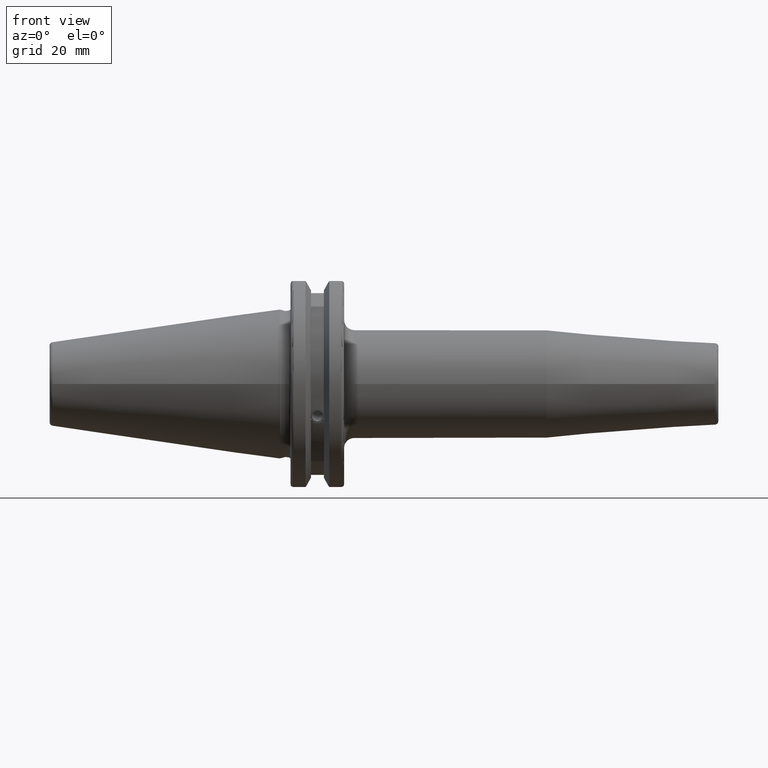
[diagram: clean part render]
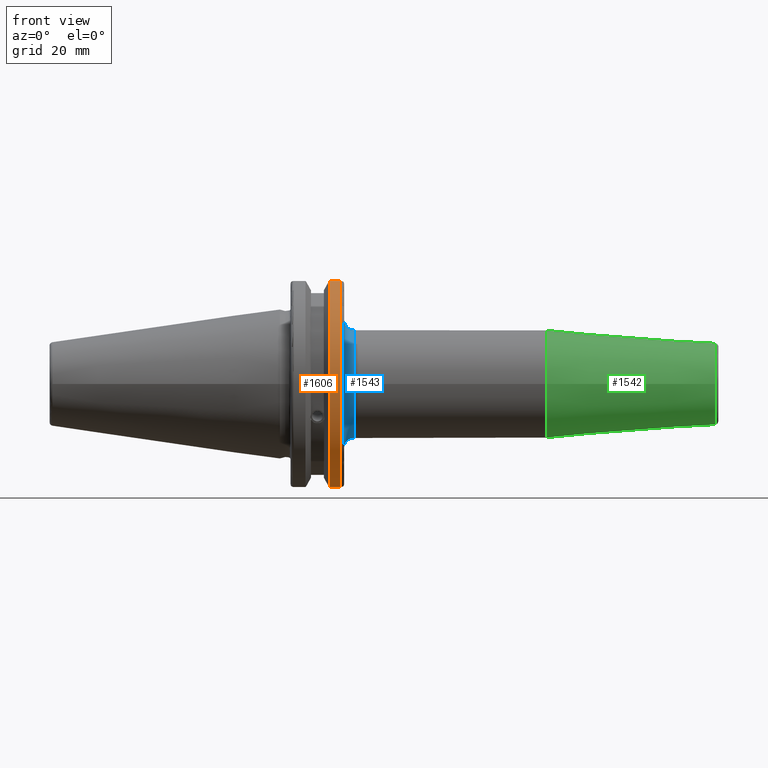
[diagram: same view with three faces highlighted in distinct colors, each labeled with its STEP entity id]
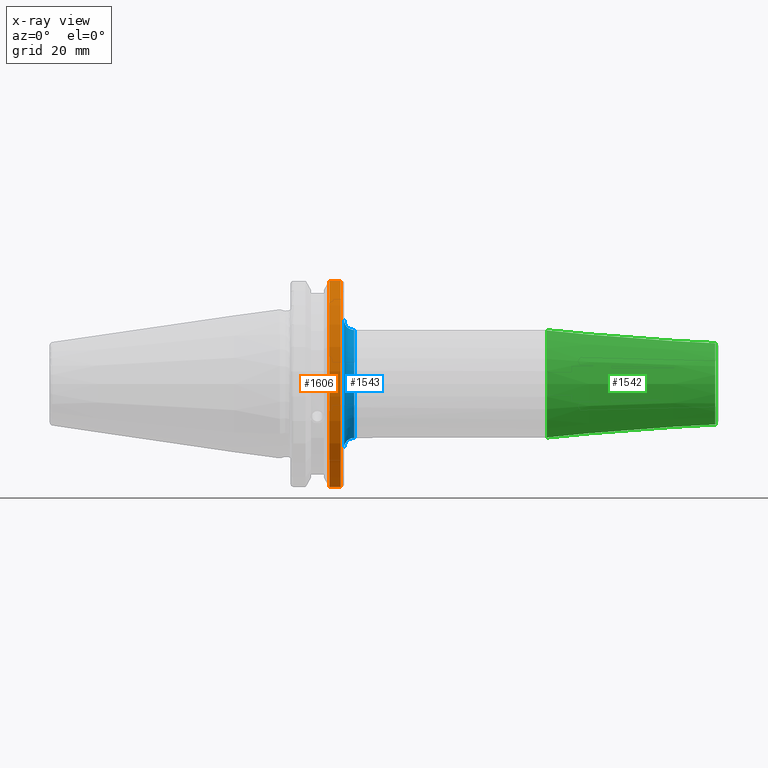
[diagram: x-ray of the same camera — body ghosted, the three highlighted faces saturated]
A machine part, front view with three faces highlighted in distinct colors.
The next image is the same camera in x-ray (body ghosted, the three faces saturated) — at least one of them is partly hidden behind the body in this view.
Their STEP definitions:

[orange] entity #1606 — the highlighted cylindrical surface (partial cylindrical patch) has radius 31.75 mm, axis along (1, 0, 0).
#168=CYLINDRICAL_SURFACE('',#1804,31.75);
#245=FACE_OUTER_BOUND('',#352,.T.);
#352=EDGE_LOOP('',(#1430,#1431,#1432,#1433));
#464=LINE('',#3051,#562);
#465=LINE('',#3053,#563);
#562=VECTOR('',#2235,10.);
#563=VECTOR('',#2238,10.);
#599=CIRCLE('',#1716,31.75);
#625=CIRCLE('',#1776,31.75);
#708=VERTEX_POINT('',#2603);
#709=VERTEX_POINT('',#2607);
#773=VERTEX_POINT('',#2894);
#774=VERTEX_POINT('',#2903);
#886=EDGE_CURVE('',#709,#708,#599,.T.);
#976=EDGE_CURVE('',#773,#774,#625,.T.);
#1022=EDGE_CURVE('',#774,#708,#464,.T.);
#1023=EDGE_CURVE('',#709,#773,#465,.T.);
#1430=ORIENTED_EDGE('',*,*,#976,.F.);
#1431=ORIENTED_EDGE('',*,*,#1023,.F.);
#1432=ORIENTED_EDGE('',*,*,#886,.T.);
#1433=ORIENTED_EDGE('',*,*,#1022,.F.);
#1606=ADVANCED_FACE('',(#245),#168,.T.);
#1716=AXIS2_PLACEMENT_3D('',#2608,#2002,#2003);
#1776=AXIS2_PLACEMENT_3D('',#2904,#2156,#2157);
#1804=AXIS2_PLACEMENT_3D('',#3052,#2236,#2237);
#2002=DIRECTION('center_axis',(1.,0.,0.));
#2003=DIRECTION('ref_axis',(0.,0.,-1.));
#2156=DIRECTION('center_axis',(1.,0.,0.));
#2157=DIRECTION('ref_axis',(0.,-1.,1.60812264967664E-16));
#2235=DIRECTION('',(-1.,0.,0.));
#2236=DIRECTION('center_axis',(1.,0.,0.));
#2237=DIRECTION('ref_axis',(0.,-1.,1.22464679914735E-16));
#2238=DIRECTION('',(1.,0.,0.));
#2603=CARTESIAN_POINT('',(14.6602667690756,-8.67204822802686,-30.5427254764662));
#2607=CARTESIAN_POINT('',(14.6602667690756,-8.67204822802685,30.5427254764662));
#2608=CARTESIAN_POINT('Origin',(14.6602667690756,0.,0.));
#2894=CARTESIAN_POINT('',(18.05,-8.67204822802685,30.5427254764662));
#2903=CARTESIAN_POINT('',(18.05,-8.67204822802686,-30.5427254764662));
#2904=CARTESIAN_POINT('Origin',(18.05,0.,0.));
#3051=CARTESIAN_POINT('',(16.8551333845378,-8.67204822802686,-30.5427254764662));
#3052=CARTESIAN_POINT('Origin',(16.8551333845378,0.,0.));
#3053=CARTESIAN_POINT('',(16.8551333845378,-8.67204822802685,30.5427254764662));

[blue] entity #1543 — the highlighted toroidal blend (fillet) surface has major radius 19 mm and minor (blend) radius 3 mm.
#117=TOROIDAL_SURFACE('',#1667,19.,3.);
#182=FACE_OUTER_BOUND('',#276,.T.);
#276=EDGE_LOOP('',(#1071,#1072,#1073,#1074,#1075));
#579=CIRCLE('',#1668,16.);
#580=CIRCLE('',#1669,3.);
#581=CIRCLE('',#1670,19.);
#582=CIRCLE('',#1671,16.);
#657=VERTEX_POINT('',#2343);
#658=VERTEX_POINT('',#2344);
#659=VERTEX_POINT('',#2346);
#819=EDGE_CURVE('',#657,#658,#579,.T.);
#820=EDGE_CURVE('',#658,#659,#580,.T.);
#821=EDGE_CURVE('',#659,#659,#581,.T.);
#822=EDGE_CURVE('',#658,#657,#582,.T.);
#1071=ORIENTED_EDGE('',*,*,#819,.T.);
#1072=ORIENTED_EDGE('',*,*,#820,.T.);
#1073=ORIENTED_EDGE('',*,*,#821,.T.);
#1074=ORIENTED_EDGE('',*,*,#820,.F.);
#1075=ORIENTED_EDGE('',*,*,#822,.T.);
#1543=ADVANCED_FACE('',(#182),#117,.F.);
#1667=AXIS2_PLACEMENT_3D('',#2342,#1877,#1878);
#1668=AXIS2_PLACEMENT_3D('',#2345,#1879,#1880);
#1669=AXIS2_PLACEMENT_3D('',#2347,#1881,#1882);
#1670=AXIS2_PLACEMENT_3D('',#2348,#1883,#1884);
#1671=AXIS2_PLACEMENT_3D('',#2349,#1885,#1886);
#1877=DIRECTION('center_axis',(-1.,0.,0.));
#1878=DIRECTION('ref_axis',(0.,0.,1.));
#1879=DIRECTION('center_axis',(-1.,0.,0.));
#1880=DIRECTION('ref_axis',(0.,-1.,-1.22464679914735E-16));
#1881=DIRECTION('center_axis',(0.,-1.,1.22464679914735E-16));
#1882=DIRECTION('ref_axis',(0.,-1.22464679914735E-16,-1.));
#1883=DIRECTION('center_axis',(1.,0.,0.));
#1884=DIRECTION('ref_axis',(0.,-1.,-1.22464679914735E-16));
#1885=DIRECTION('center_axis',(-1.,0.,0.));
#1886=DIRECTION('ref_axis',(0.,-1.,-1.22464679914735E-16));
#2342=CARTESIAN_POINT('Origin',(22.05,0.,0.));
#2343=CARTESIAN_POINT('',(22.05,-16.,-1.95943487863577E-15));
#2344=CARTESIAN_POINT('',(22.05,-1.95943487863577E-15,-16.));
#2345=CARTESIAN_POINT('Origin',(22.05,0.,0.));
#2346=CARTESIAN_POINT('',(19.05,-2.32682891837997E-15,-19.));
#2347=CARTESIAN_POINT('Origin',(22.05,-2.32682891837997E-15,-19.));
#2348=CARTESIAN_POINT('Origin',(19.05,0.,0.));
#2349=CARTESIAN_POINT('Origin',(22.05,0.,0.));

[green] entity #1542 — the highlighted conical surface has half-angle 4.5 deg.
#181=FACE_OUTER_BOUND('',#275,.T.);
#275=EDGE_LOOP('',(#1066,#1067,#1068,#1069,#1070));
#379=LINE('',#2340,#477);
#477=VECTOR('',#1874,14.);
#575=CIRCLE('',#1661,12.0725268420749);
#576=CIRCLE('',#1662,12.0725268420749);
#578=CIRCLE('',#1666,16.);
#653=VERTEX_POINT('',#2330);
#654=VERTEX_POINT('',#2332);
#656=VERTEX_POINT('',#2339);
#814=EDGE_CURVE('',#653,#654,#575,.T.);
#815=EDGE_CURVE('',#654,#653,#576,.T.);
#817=EDGE_CURVE('',#654,#656,#379,.T.);
#818=EDGE_CURVE('',#656,#656,#578,.T.);
#1066=ORIENTED_EDGE('',*,*,#815,.F.);
#1067=ORIENTED_EDGE('',*,*,#817,.T.);
#1068=ORIENTED_EDGE('',*,*,#818,.T.);
#1069=ORIENTED_EDGE('',*,*,#817,.F.);
#1070=ORIENTED_EDGE('',*,*,#814,.F.);
#1523=CONICAL_SURFACE('',#1665,14.,0.0785398163397448);
#1542=ADVANCED_FACE('',(#181),#1523,.T.);
#1661=AXIS2_PLACEMENT_3D('',#2333,#1864,#1865);
#1662=AXIS2_PLACEMENT_3D('',#2334,#1866,#1867);
#1665=AXIS2_PLACEMENT_3D('',#2338,#1872,#1873);
#1666=AXIS2_PLACEMENT_3D('',#2341,#1875,#1876);
#1864=DIRECTION('center_axis',(1.,0.,0.));
#1865=DIRECTION('ref_axis',(0.,-1.,3.06161699786838E-17));
#1866=DIRECTION('center_axis',(1.,0.,0.));
#1867=DIRECTION('ref_axis',(0.,-1.,3.06161699786838E-17));
#1872=DIRECTION('center_axis',(-1.,0.,0.));
#1873=DIRECTION('ref_axis',(0.,1.,0.));
#1874=DIRECTION('',(-0.996917333733128,-0.078459095727845,-9.60846804471011E-18));
#1875=DIRECTION('center_axis',(1.,0.,0.));
#1876=DIRECTION('ref_axis',(0.,0.,-1.));
#2330=CARTESIAN_POINT('',(129.078459095728,-1.47845813547676E-15,12.0725268420749));
#2332=CARTESIAN_POINT('',(129.078459095728,-12.0725268420749,-1.47845813547676E-15));
#2333=CARTESIAN_POINT('Origin',(129.078459095728,0.,-1.84807266934594E-15));
#2334=CARTESIAN_POINT('Origin',(129.078459095728,0.,-1.84807266934594E-15));
#2338=CARTESIAN_POINT('Origin',(104.587590527651,0.,0.));
#2339=CARTESIAN_POINT('',(79.1751810553012,-16.,-1.95943487863577E-15));
#2340=CARTESIAN_POINT('',(104.587590527651,-14.,-1.71450551880629E-15));
#2341=CARTESIAN_POINT('Origin',(79.1751810553012,0.,0.));